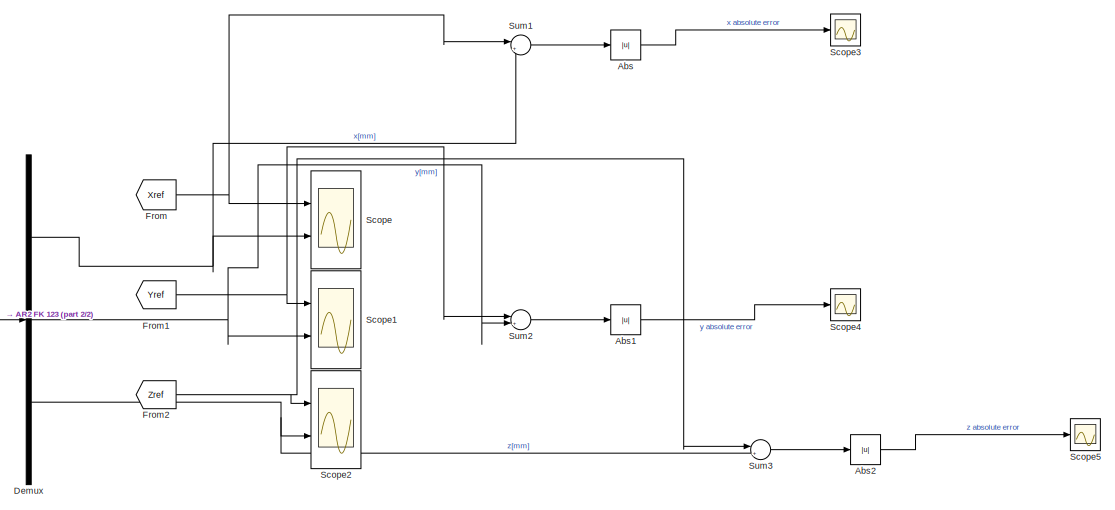
[diagram: root canvas - part 1/2, right side, full height]
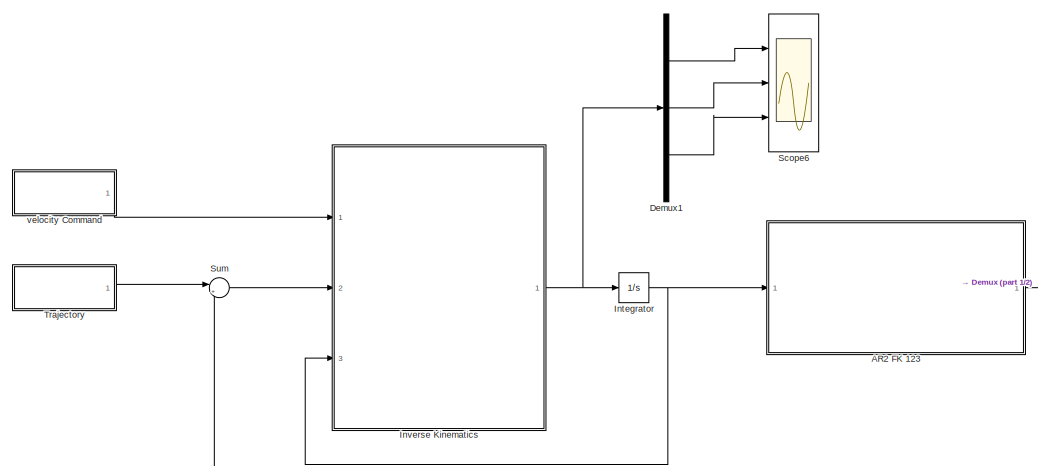
[diagram: root canvas - part 2/2, left side, full height]
MODEL slx_f37d7e2cc62d
KIND model
CONFIG AbsTol = auto
CONFIG EnableMultiTasking = off
CONFIG FixedStep = auto
CONFIG MaxStep = auto
CONFIG MinStep = auto
CONFIG RelTol = auto
CONFIG SampleTimeConstraint = Unconstrained
CONFIG Solver = VariableStepAuto
CONFIG SolverName = VariableStepAuto
CONFIG StartTime = 0.0
CONFIG StopTime = 10
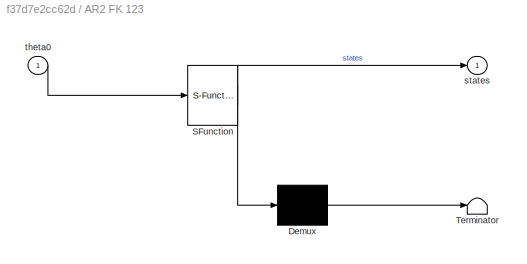
BLOCK [SubSystem] AR2 FK 123
  ErrorFcn = Stateflow.Translate.translate
  PermitHierarchicalResolution = ExplicitOnly
  Ports = [1, 1]
  RequestExecContextInheritance = off
  SFBlockType = MATLAB Function
  TreatAsAtomicUnit = on
BLOCK [Demux] AR2 FK 123/ Demux 
  Outputs = 1
  Ports = [1, 1]
BLOCK [S-Function] AR2 FK 123/ SFunction 
  EnableBusSupport = on
  FunctionName = sf_sfun
  PortCounts = [1 2]
  Ports = [1, 2]
  SFcnIsStateOwnerBlock = off
  SFunctionDeploymentMode = off
  Tag = Stateflow S-Function 1
BLOCK [Terminator] AR2 FK 123/ Terminator 
BLOCK [Outport] AR2 FK 123/states
  IconDisplay = Port number
  VectorParamsAs1DForOutWhenUnconnected = off
BLOCK [Inport] AR2 FK 123/theta0
  IconDisplay = Port number
BLOCK [Abs] Abs
  SaturateOnIntegerOverflow = off
BLOCK [Abs] Abs1
  SaturateOnIntegerOverflow = off
BLOCK [Abs] Abs2
  SaturateOnIntegerOverflow = off
BLOCK [Demux] Demux
  DisplayOption = bar
  Outputs = 3
  Ports = [1, 3]
BLOCK [Demux] Demux1
  DisplayOption = bar
  Outputs = 3
  Ports = [1, 3]
BLOCK [From] From
  GotoTag = Xref
  TagVisibility = global
BLOCK [From] From1
  GotoTag = Yref
  TagVisibility = global
BLOCK [From] From2
  GotoTag = Zref
  TagVisibility = global
BLOCK [Integrator] Integrator
  InitialCondition = [40 50 130 ]'*pi/180
  Ports = [1, 1]
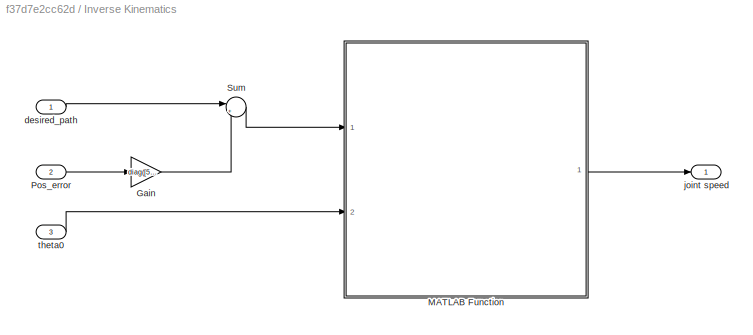
BLOCK [SubSystem] Inverse Kinematics
  Ports = [3, 1]
  RequestExecContextInheritance = off
BLOCK [Gain] Inverse Kinematics/Gain
  Gain = diag([5 5 5])
  Multiplication = Matrix(K*u)
  OutDataTypeStr = Inherit: Inherit via internal rule
  ParamDataTypeStr = Inherit: Inherit via internal rule
  SaturateOnIntegerOverflow = off
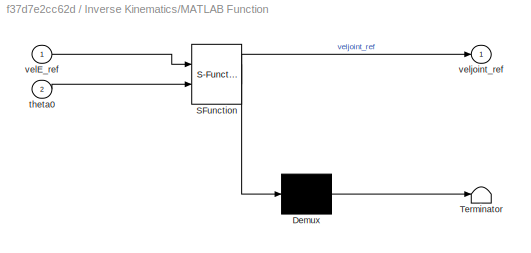
BLOCK [SubSystem] Inverse Kinematics/MATLAB Function
  ErrorFcn = Stateflow.Translate.translate
  PermitHierarchicalResolution = ExplicitOnly
  Ports = [2, 1]
  RequestExecContextInheritance = off
  SFBlockType = MATLAB Function
  TreatAsAtomicUnit = on
BLOCK [Demux] Inverse Kinematics/MATLAB Function/ Demux 
  Outputs = 1
  Ports = [1, 1]
BLOCK [S-Function] Inverse Kinematics/MATLAB Function/ SFunction 
  EnableBusSupport = on
  FunctionName = sf_sfun
  PortCounts = [2 2]
  Ports = [2, 2]
  SFcnIsStateOwnerBlock = off
  SFunctionDeploymentMode = off
  Tag = Stateflow S-Function 2
BLOCK [Terminator] Inverse Kinematics/MATLAB Function/ Terminator 
BLOCK [Inport] Inverse Kinematics/MATLAB Function/theta0
  IconDisplay = Port number
  Port = 2
BLOCK [Inport] Inverse Kinematics/MATLAB Function/velE_ref
  IconDisplay = Port number
BLOCK [Outport] Inverse Kinematics/MATLAB Function/veljoint_ref
  IconDisplay = Port number
  VectorParamsAs1DForOutWhenUnconnected = off
BLOCK [Inport] Inverse Kinematics/Pos_error
  IconDisplay = Port number
  Port = 2
BLOCK [Sum] Inverse Kinematics/Sum
  IconShape = round
  InputSameDT = off
  Inputs = |++
  OutDataTypeStr = Inherit: Inherit via internal rule
  Ports = [2, 1]
  SaturateOnIntegerOverflow = off
BLOCK [Inport] Inverse Kinematics/desired_path
  IconDisplay = Port number
BLOCK [Outport] Inverse Kinematics/joint speed
  IconDisplay = Port number
  VectorParamsAs1DForOutWhenUnconnected = off
BLOCK [Inport] Inverse Kinematics/theta0
  IconDisplay = Port number
  Port = 3
BLOCK [Scope] Scope
  Floating = off
  NumInputPorts = 2
  Ports = [2]
  ScopeSpecificationString = Simulink.scopes.TimeScopeBlockCfg('CurrentConfiguration', extmgr.ConfigurationSet(extmgr.Configuration('Core','General UI',true),extmgr.Configuration('Core','Source UI',true),extmgr.Configuration('Sources','WiredSimulink',true,'DataLoggingVariableName','ScopeData1'),extmgr.Configuration('Visuals','Time Domain',true,'SerializedDisplays',{struct('MinYLimReal','25.54254','MaxYLimReal','399.93557','YL...<+1486ch>
BLOCK [Scope] Scope1
  Floating = off
  NumInputPorts = 2
  Ports = [2]
  ScopeSpecificationString = Simulink.scopes.TimeScopeBlockCfg('CurrentConfiguration', extmgr.ConfigurationSet(extmgr.Configuration('Core','General UI',true),extmgr.Configuration('Core','Source UI',true),extmgr.Configuration('Sources','WiredSimulink',true,'DataLoggingVariableName','ScopeData2'),extmgr.Configuration('Visuals','Time Domain',true,'SerializedDisplays',{struct('MinYLimReal','20.81195','MaxYLimReal','345.61029','YL...<+1488ch>
BLOCK [Scope] Scope2
  Floating = off
  NumInputPorts = 2
  Ports = [2]
  ScopeSpecificationString = Simulink.scopes.TimeScopeBlockCfg('CurrentConfiguration', extmgr.ConfigurationSet(extmgr.Configuration('Core','General UI',true),extmgr.Configuration('Core','Source UI',true),extmgr.Configuration('Sources','WiredSimulink',true,'DataLoggingVariableName','ScopeData3'),extmgr.Configuration('Visuals','Time Domain',true,'SerializedDisplays',{struct('MinYLimReal','-249.88292','MaxYLimReal','345.6468','Y...<+1486ch>
BLOCK [Scope] Scope3
  Floating = off
  NumInputPorts = 1
  Ports = [1]
  ScopeSpecificationString = Simulink.scopes.TimeScopeBlockCfg('CurrentConfiguration', extmgr.ConfigurationSet(extmgr.Configuration('Core','General UI',true),extmgr.Configuration('Core','Source UI',true),extmgr.Configuration('Sources','WiredSimulink',true,'DataLoggingVariableName','ScopeData4'),extmgr.Configuration('Visuals','Time Domain',true,'SerializedDisplays',{struct('MinYLimReal','-70.70476','MaxYLimReal','636.34338','Y...<+1460ch>
BLOCK [Scope] Scope4
  Floating = off
  NumInputPorts = 1
  Ports = [1]
  ScopeSpecificationString = Simulink.scopes.TimeScopeBlockCfg('CurrentConfiguration', extmgr.ConfigurationSet(extmgr.Configuration('Core','General UI',true),extmgr.Configuration('Core','Source UI',true),extmgr.Configuration('Sources','WiredSimulink',true,'DataLoggingVariableName','ScopeData5'),extmgr.Configuration('Visuals','Time Domain',true,'SerializedDisplays',{struct('MinYLimReal','-0.38698','MaxYLimReal','3.48282','YLab...<+1473ch>
BLOCK [Scope] Scope5
  Floating = off
  NumInputPorts = 1
  Ports = [1]
  ScopeSpecificationString = Simulink.scopes.TimeScopeBlockCfg('CurrentConfiguration', extmgr.ConfigurationSet(extmgr.Configuration('Core','General UI',true),extmgr.Configuration('Core','Source UI',true),extmgr.Configuration('Sources','WiredSimulink',true,'DataLoggingVariableName','ScopeData6'),extmgr.Configuration('Visuals','Time Domain',true,'SerializedDisplays',{struct('MinYLimReal','-1.9805','MaxYLimReal','17.82446','YLab...<+1448ch>
BLOCK [Scope] Scope6
  Floating = off
  NumInputPorts = 3
  Ports = [3]
  ScopeSpecificationString = Simulink.scopes.TimeScopeBlockCfg('CurrentConfiguration', extmgr.ConfigurationSet(extmgr.Configuration('Core','General UI',true),extmgr.Configuration('Core','Source UI',true),extmgr.Configuration('Sources','WiredSimulink',true,'DataLoggingVariableName','ScopeData1'),extmgr.Configuration('Visuals','Time Domain',true),extmgr.Configuration('Tools','Plot Navigation',true),extmgr.Configuration('Tools',...<+40ch>
BLOCK [Sum] Sum
  IconShape = round
  InputSameDT = off
  Inputs = |+-
  OutDataTypeStr = Inherit: Inherit via internal rule
  Ports = [2, 1]
  SaturateOnIntegerOverflow = off
BLOCK [Sum] Sum1
  IconShape = round
  InputSameDT = off
  Inputs = |+-
  OutDataTypeStr = Inherit: Inherit via internal rule
  Ports = [2, 1]
  SaturateOnIntegerOverflow = off
BLOCK [Sum] Sum2
  IconShape = round
  InputSameDT = off
  Inputs = |+-
  OutDataTypeStr = Inherit: Inherit via internal rule
  Ports = [2, 1]
  SaturateOnIntegerOverflow = off
BLOCK [Sum] Sum3
  IconShape = round
  InputSameDT = off
  Inputs = |+-
  OutDataTypeStr = Inherit: Inherit via internal rule
  Ports = [2, 1]
  SaturateOnIntegerOverflow = off
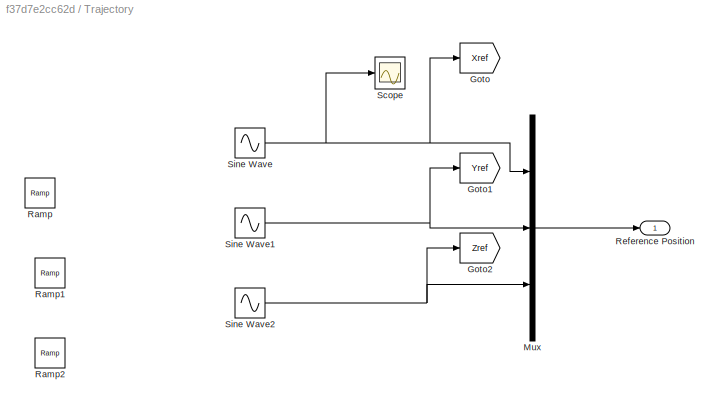
BLOCK [SubSystem] Trajectory 
  Ports = [0, 1]
  RequestExecContextInheritance = off
BLOCK [Goto] Trajectory /Goto
  GotoTag = Xref
  TagVisibility = global
BLOCK [Goto] Trajectory /Goto1
  GotoTag = Yref
  TagVisibility = global
BLOCK [Goto] Trajectory /Goto2
  GotoTag = Zref
  TagVisibility = global
BLOCK [Mux] Trajectory /Mux
  DisplayOption = bar
  Inputs = 3
  Ports = [3, 1]
BLOCK [Reference] Trajectory /Ramp  REF=simulink/Sources/Ramp
  Commented = on
  Ports = [0, 1]
  SourceBlock = simulink/Sources/Ramp
  SourceProductBaseCode = SL
  SourceProductName = Simulink
  SourceType = Ramp
BLOCK [Reference] Trajectory /Ramp1  REF=simulink/Sources/Ramp
  Commented = on
  Ports = [0, 1]
  SourceBlock = simulink/Sources/Ramp
  SourceProductBaseCode = SL
  SourceProductName = Simulink
  SourceType = Ramp
BLOCK [Reference] Trajectory /Ramp2  REF=simulink/Sources/Ramp
  Commented = on
  Ports = [0, 1]
  SourceBlock = simulink/Sources/Ramp
  SourceProductBaseCode = SL
  SourceProductName = Simulink
  SourceType = Ramp
BLOCK [Outport] Trajectory /Reference Position
  IconDisplay = Port number
  VectorParamsAs1DForOutWhenUnconnected = off
BLOCK [Scope] Trajectory /Scope
  Floating = off
  NumInputPorts = 1
  Ports = [1]
  ScopeSpecificationString = Simulink.scopes.TimeScopeBlockCfg('CurrentConfiguration', extmgr.ConfigurationSet(extmgr.Configuration('Core','General UI',true),extmgr.Configuration('Core','Source UI',true),extmgr.Configuration('Sources','WiredSimulink',true,'DataLoggingVariableName','ScopeData2'),extmgr.Configuration('Visuals','Time Domain',true,'SerializedDisplays',{struct('MinYLimReal','132.59097','MaxYLimReal','257.48959','Y...<+1438ch>
BLOCK [Sin] Trajectory /Sine Wave
  Amplitude = 50
  Bias = 195
  Ports = [0, 1]
  SampleTime = 0
BLOCK [Sin] Trajectory /Sine Wave1
  Amplitude = 50
  Bias = 165
  Ports = [0, 1]
  SampleTime = 0
BLOCK [Sin] Trajectory /Sine Wave2
  Amplitude = 50
  Bias = -52
  Ports = [0, 1]
  SampleTime = 0
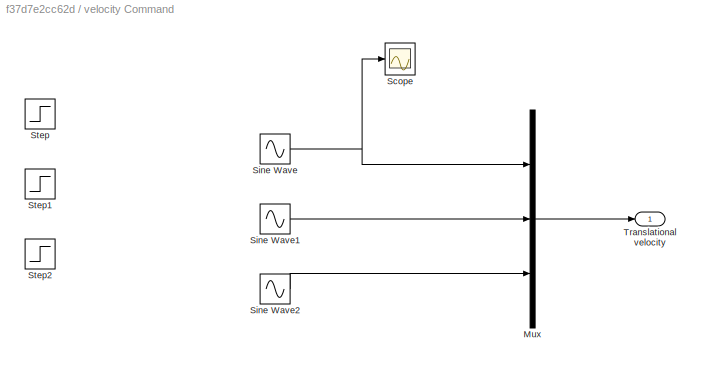
BLOCK [SubSystem] velocity Command
  Ports = [0, 1]
  RequestExecContextInheritance = off
BLOCK [Mux] velocity Command/Mux
  DisplayOption = bar
  Inputs = 3
  Ports = [3, 1]
BLOCK [Scope] velocity Command/Scope
  Floating = off
  NumInputPorts = 1
  Ports = [1]
  ScopeSpecificationString = Simulink.scopes.TimeScopeBlockCfg('CurrentConfiguration', extmgr.ConfigurationSet(extmgr.Configuration('Core','General UI',true),extmgr.Configuration('Core','Source UI',true),extmgr.Configuration('Sources','WiredSimulink',true,'DataLoggingVariableName','ScopeData1'),extmgr.Configuration('Visuals','Time Domain',true,'SerializedDisplays',{struct('MinYLimReal','98.41108','MaxYLimReal','100.17655','YL...<+1378ch>
BLOCK [Sin] velocity Command/Sine Wave
  Amplitude = 50
  Phase = pi/2
  Ports = [0, 1]
  SampleTime = 0
BLOCK [Sin] velocity Command/Sine Wave1
  Amplitude = 50
  Phase = pi/2
  Ports = [0, 1]
  SampleTime = 0
BLOCK [Sin] velocity Command/Sine Wave2
  Amplitude = 50
  Phase = pi/2
  Ports = [0, 1]
  SampleTime = 0
BLOCK [Step] velocity Command/Step
  Commented = on
  SampleTime = 0
  Time = 10
BLOCK [Step] velocity Command/Step1
  Commented = on
  SampleTime = 0
  Time = 10
BLOCK [Step] velocity Command/Step2
  Commented = on
  SampleTime = 0
  Time = 10
BLOCK [Outport] velocity Command/Translational velocity
  IconDisplay = Port number
  VectorParamsAs1DForOutWhenUnconnected = off
NET AR2 FK 123:1 -> Demux:1, Sum:2
LINE Abs1:1 -> Scope4:1
LINE Abs2:1 -> Scope5:1
LINE Abs:1 -> Scope3:1
LINE Demux1:1 -> Scope6:1
LINE Demux1:2 -> Scope6:2
LINE Demux1:3 -> Scope6:3
NET Demux:1 -> Scope:2, Sum1:2
NET Demux:2 -> Scope1:2, Sum2:2
NET Demux:3 -> Scope2:2, Sum3:2
NET From1:1 -> Scope1:1, Sum2:1
NET From2:1 -> Scope2:1, Sum3:1
NET From:1 -> Scope:1, Sum1:1
NET Integrator:1 -> AR2 FK 123:1, Inverse Kinematics:3
LINE Inverse Kinematics/Gain:1 -> Inverse Kinematics/Sum:2
LINE Inverse Kinematics/MATLAB Function:1 -> Inverse Kinematics/joint speed:1
LINE Inverse Kinematics/Pos_error:1 -> Inverse Kinematics/Gain:1
LINE Inverse Kinematics/Sum:1 -> Inverse Kinematics/MATLAB Function:1
LINE Inverse Kinematics/desired_path:1 -> Inverse Kinematics/Sum:1
LINE Inverse Kinematics/theta0:1 -> Inverse Kinematics/MATLAB Function:2
NET Inverse Kinematics:1 -> Demux1:1, Integrator:1
LINE Sum1:1 -> Abs:1
LINE Sum2:1 -> Abs1:1
LINE Sum3:1 -> Abs2:1
LINE Sum:1 -> Inverse Kinematics:2
LINE Trajectory /Mux:1 -> Trajectory /Reference Position:1
NET Trajectory /Sine Wave1:1 -> Trajectory /Goto1:1, Trajectory /Mux:2
NET Trajectory /Sine Wave2:1 -> Trajectory /Goto2:1, Trajectory /Mux:3
NET Trajectory /Sine Wave:1 -> Trajectory /Goto:1, Trajectory /Mux:1, Trajectory /Scope:1
LINE Trajectory :1 -> Sum:1
LINE velocity Command/Mux:1 -> velocity Command/Translational velocity:1
LINE velocity Command/Sine Wave1:1 -> velocity Command/Mux:2
LINE velocity Command/Sine Wave2:1 -> velocity Command/Mux:3
NET velocity Command/Sine Wave:1 -> velocity Command/Mux:1, velocity Command/Scope:1
LINE velocity Command:1 -> Inverse Kinematics:1
note: NET lines group one-source signal fan-out (src -> all destinations, sorted); 1:1 wires keep LINE
CHART AR2 FK 123 states=1 transitions=1
  STATE_LABEL 'eML_blk_kernel()'
  STATE_LABEL 'SCRIPT:\n% function to calculate analytical Jacobian \nfunction states = manipFK(theta0)\n%% Inputs\ntheta1 = theta0(1);\ntheta2 = theta0(2);\ntheta3 = theta0(3);\n%% DH parameters\nd1 = 169.77;    a1 = 64.2;  alpha1 = -90*pi/180;    \nd2 = 0;         a2 = 305;   alpha2 = 0;             \nd3 = 0;         a3 = 0;     alpha3 = 90*pi/180;     \nd4 = -222.63;   a4 = 0;     alpha4 = -90*pi/180;    \nd5 = 0;       ...<+1228ch>'
CHART Inverse Kinematics/MATLAB Function states=1 transitions=1
  STATE_LABEL 'eML_blk_kernel()'
  STATE_LABEL 'SCRIPT:\nfunction veljoint_ref = trajectoryIK(velE_ref,theta0)\n\nd1 = 169.77;    a1 = 64.2;  alpha1 = -90*pi/180;\nd2 = 0;         a2 = 305;   alpha2 = 0;\nd3 = 0;         a3 = 0;     alpha3 = 90*pi/180;\nd4 = -222.63;   a4 = 0;     alpha4 = -90*pi/180;\nd5 = 0;         a5 = 0;     alpha5 = 90*pi/180;\nd6 = -36.25;    a6 = 0;     alpha6 = 0;\n\ntheta1 = theta0(1);\ntheta2 = theta0(2);\ntheta3 = theta0(3);\nth...<+2064ch>'
